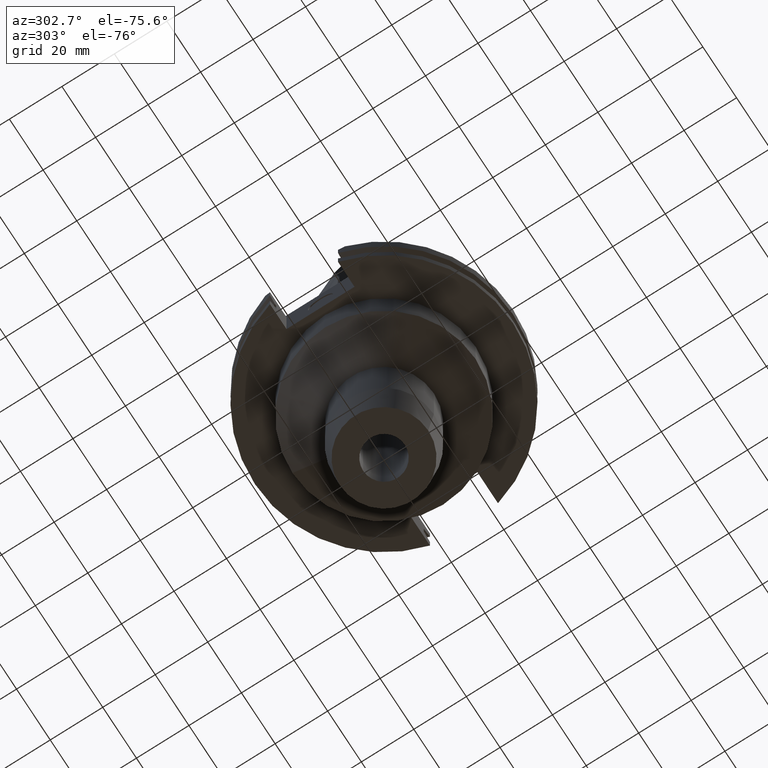
[diagram: clean part render]
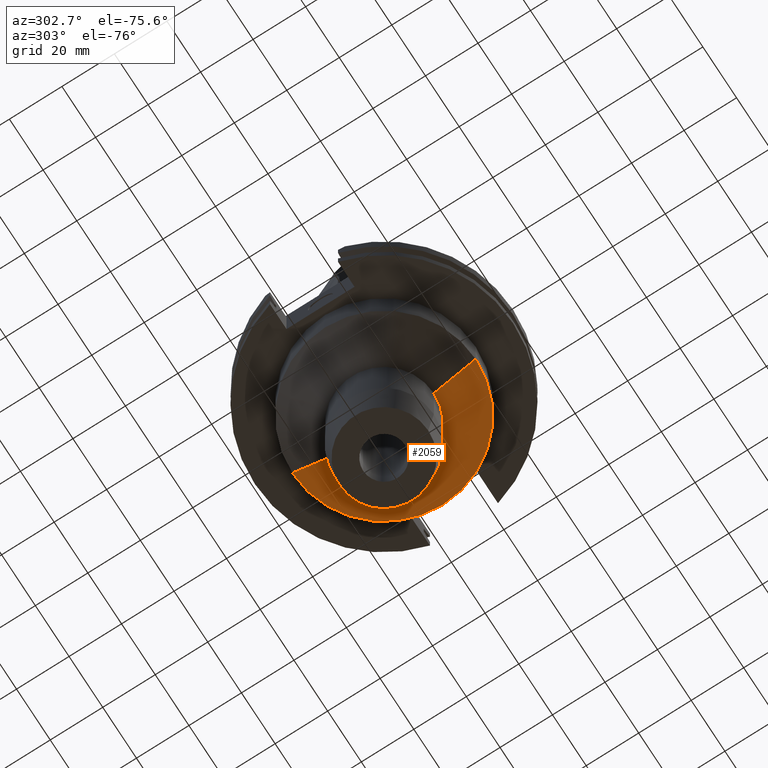
[diagram: same view with one face highlighted and labeled with its STEP entity id]
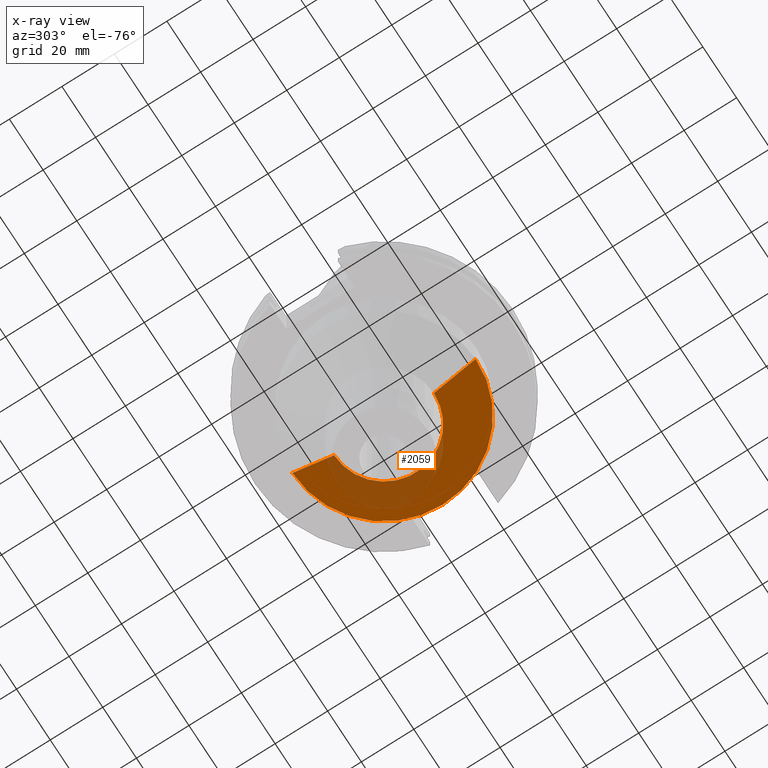
[diagram: x-ray of the same camera — body ghosted, the highlighted face saturated]
A machine part, auxiliary view. The second image highlights one B-rep face of the part: STEP entity #2059.
The next image is the same camera in x-ray: the body ghosted, the highlighted face saturated — about 25% of this face is hidden behind the body in this view.
In plain terms, the highlighted conical surface has half-angle 56.379 deg.
Its self-contained STEP definition (entity closure, byte-faithful):
#862=DIRECTION('',(0.E0,-8.327183561725E-1,-5.536967936455E-1));
#863=VECTOR('',#862,1.912411307131E1);
#864=CARTESIAN_POINT('',(0.E0,3.4925E1,-3.5E1));
#865=LINE('',#864,#863);
#869=CARTESIAN_POINT('',(0.E0,0.E0,-4.558896008890E1));
#870=DIRECTION('',(0.E0,0.E0,-1.E0));
#871=DIRECTION('',(0.E0,1.E0,0.E0));
#872=AXIS2_PLACEMENT_3D('',#869,#870,#871);
#877=CARTESIAN_POINT('',(0.E0,0.E0,-3.5E1));
#878=DIRECTION('',(0.E0,0.E0,1.E0));
#879=DIRECTION('',(0.E0,-1.E0,0.E0));
#880=AXIS2_PLACEMENT_3D('',#877,#878,#879);
#893=DIRECTION('',(0.E0,8.327183561725E-1,-5.536967936455E-1));
#894=VECTOR('',#893,1.912411307131E1);
#895=CARTESIAN_POINT('',(0.E0,-3.4925E1,-3.5E1));
#896=LINE('',#895,#894);
#1276=CARTESIAN_POINT('',(0.E0,3.4925E1,-3.5E1));
#1277=VERTEX_POINT('',#1276);
#1278=CARTESIAN_POINT('',(0.E0,-3.4925E1,-3.5E1));
#1279=VERTEX_POINT('',#1278);
#1280=CARTESIAN_POINT('',(0.E0,1.9E1,-4.558896008890E1));
#1281=VERTEX_POINT('',#1280);
#1282=CARTESIAN_POINT('',(0.E0,-1.9E1,-4.558896008890E1));
#1283=VERTEX_POINT('',#1282);
#2045=CARTESIAN_POINT('',(0.E0,0.E0,-4.029448004445E1));
#2046=DIRECTION('',(0.E0,0.E0,1.E0));
#2047=DIRECTION('',(0.E0,1.E0,0.E0));
#2048=AXIS2_PLACEMENT_3D('',#2045,#2046,#2047);
#2049=CONICAL_SURFACE('',#2048,2.69625E1,5.6379E1);
#2051=ORIENTED_EDGE('',*,*,#2050,.T.);
#2053=ORIENTED_EDGE('',*,*,#2052,.T.);
#2055=ORIENTED_EDGE('',*,*,#2054,.F.);
#2056=ORIENTED_EDGE('',*,*,#2038,.T.);
#2057=EDGE_LOOP('',(#2051,#2053,#2055,#2056));
#2058=FACE_OUTER_BOUND('',#2057,.F.);
#873=CIRCLE('',#872,1.9E1);
#881=CIRCLE('',#880,3.4925E1);
#2038=EDGE_CURVE('',#1279,#1277,#881,.T.);
#2050=EDGE_CURVE('',#1277,#1281,#865,.T.);
#2052=EDGE_CURVE('',#1281,#1283,#873,.T.);
#2054=EDGE_CURVE('',#1279,#1283,#896,.T.);
#2059=ADVANCED_FACE('',(#2058),#2049,.T.);